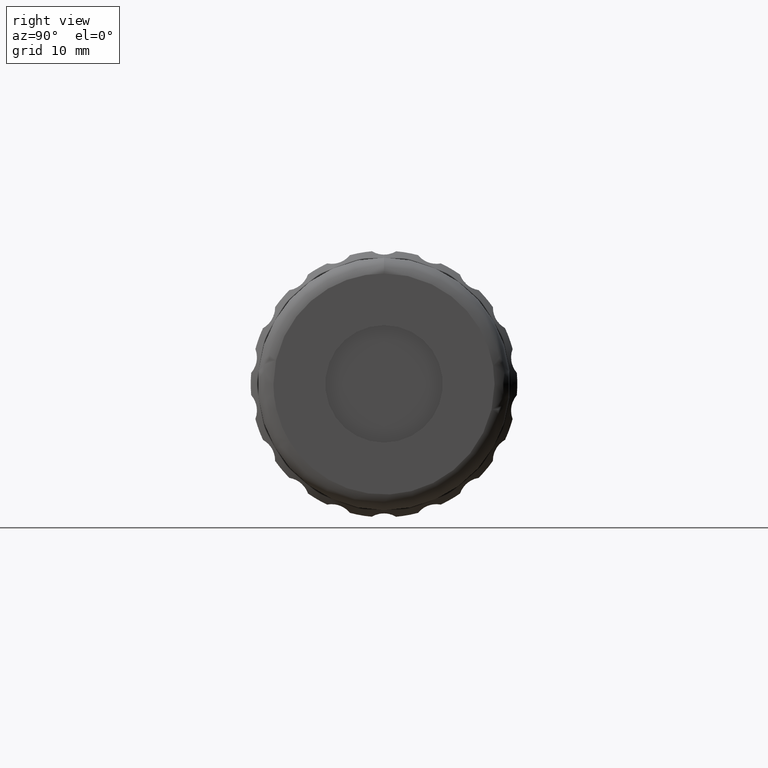
[diagram: clean part render]
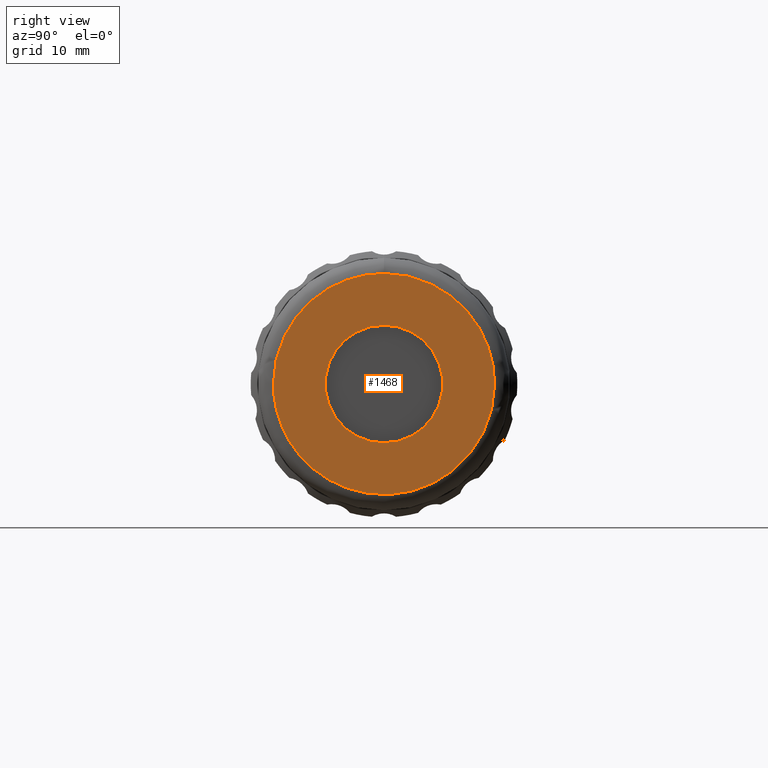
[diagram: same view with one face highlighted and labeled with its STEP entity id]
A machine part, right view. The second image highlights one B-rep face of the part: STEP entity #1468.
In plain terms, the highlighted planar face has unit normal (1, 0, 0).
Its self-contained STEP definition (entity closure, byte-faithful):
#80 = EDGE_CURVE ( 'NONE', #1389, #1389, #1071, .T. ) ;
#94 = CARTESIAN_POINT ( 'NONE',  ( 70.44685803487880094, 31.92096199999999584, -1.036051192078660836E-15 ) ) ;
#130 = ORIENTED_EDGE ( 'NONE', *, *, #80, .T. ) ;
#153 = AXIS2_PLACEMENT_3D ( 'NONE', #701, #859, #494 ) ;
#183 = ORIENTED_EDGE ( 'NONE', *, *, #1067, .F. ) ;
#221 = CARTESIAN_POINT ( 'NONE',  ( 70.44685803487880094, 31.92096199999999584, 8.259588770539357583 ) ) ;
#373 = CARTESIAN_POINT ( 'NONE',  ( 70.44685803487880094, 31.92096199999999584, -1.036051192078660836E-15 ) ) ;
#405 =( BOUNDED_CURVE ( )  B_SPLINE_CURVE ( 3, ( #451, #746, #2044, #1895 ),
 .UNSPECIFIED., .F., .T. ) 
 B_SPLINE_CURVE_WITH_KNOTS ( ( 4, 4 ),
 ( 0.000000000000000000, 1.000000000000000000 ),
 .UNSPECIFIED. ) 
 CURVE ( )  GEOMETRIC_REPRESENTATION_ITEM ( )  RATIONAL_B_SPLINE_CURVE ( ( 1.000000000000000000, 0.3333333333333333703, 0.3333333333333333703, 1.000000000000000000 ) ) 
 REPRESENTATION_ITEM ( '' )  );
#412 = CARTESIAN_POINT ( 'NONE',  ( 70.44685803487880094, 46.02096199999999726, 14.10000000000000142 ) ) ;
#451 = CARTESIAN_POINT ( 'NONE',  ( 70.44685803487880094, 60.12096199999999868, 0.000000000000000000 ) ) ;
#494 = DIRECTION ( 'NONE',  ( 0.000000000000000000, 0.000000000000000000, -1.000000000000000000 ) ) ;
#511 = EDGE_CURVE ( 'NONE', #2063, #1127, #835, .T. ) ;
#524 = EDGE_CURVE ( 'NONE', #1127, #917, #899, .T. ) ;
#648 = CARTESIAN_POINT ( 'NONE',  ( 70.44685803487880094, 46.02096199999999726, 14.44999999999999929 ) ) ;
#661 = DIRECTION ( 'NONE',  ( 1.000000000000000000, 0.000000000000000000, 0.000000000000000000 ) ) ;
#701 = CARTESIAN_POINT ( 'NONE',  ( 70.44685803487880094, 46.02096199999999726, 4.350675744370770171E-31 ) ) ;
#746 = CARTESIAN_POINT ( 'NONE',  ( 70.44685803487880094, 60.12096200000000579, -28.19999999999999929 ) ) ;
#759 = ORIENTED_EDGE ( 'NONE', *, *, #524, .F. ) ;
#761 = AXIS2_PLACEMENT_3D ( 'NONE', #648, #661, #984 ) ;
#786 = FACE_OUTER_BOUND ( 'NONE', #911, .T. ) ;
#817 = CARTESIAN_POINT ( 'NONE',  ( 70.44685803487880094, 46.02096199999999726, -7.500000000000000000 ) ) ;
#835 =( BOUNDED_CURVE ( )  B_SPLINE_CURVE ( 3, ( #373, #221, #1057, #1039 ),
 .UNSPECIFIED., .F., .T. ) 
 B_SPLINE_CURVE_WITH_KNOTS ( ( 4, 4 ),
 ( 0.000000000000000000, 1.000000000000000000 ),
 .UNSPECIFIED. ) 
 CURVE ( )  GEOMETRIC_REPRESENTATION_ITEM ( )  RATIONAL_B_SPLINE_CURVE ( ( 1.000000000000000000, 0.8047378541243649375, 0.8047378541243649375, 1.000000000000000000 ) ) 
 REPRESENTATION_ITEM ( '' )  );
#859 = DIRECTION ( 'NONE',  ( -1.000000000000000000, -0.000000000000000000, -0.000000000000000000 ) ) ;
#895 = CARTESIAN_POINT ( 'NONE',  ( 70.44685803487880094, 54.28055077053935662, 14.09999999999999964 ) ) ;
#899 =( BOUNDED_CURVE ( )  B_SPLINE_CURVE ( 3, ( #412, #895, #1066, #1717 ),
 .UNSPECIFIED., .F., .T. ) 
 B_SPLINE_CURVE_WITH_KNOTS ( ( 4, 4 ),
 ( 0.000000000000000000, 1.000000000000000000 ),
 .UNSPECIFIED. ) 
 CURVE ( )  GEOMETRIC_REPRESENTATION_ITEM ( )  RATIONAL_B_SPLINE_CURVE ( ( 1.000000000000000000, 0.8047378541243649375, 0.8047378541243649375, 1.000000000000000000 ) ) 
 REPRESENTATION_ITEM ( '' )  );
#911 = EDGE_LOOP ( 'NONE', ( #183, #759, #1299 ) ) ;
#917 = VERTEX_POINT ( 'NONE', #1217 ) ;
#984 = DIRECTION ( 'NONE',  ( 0.000000000000000000, 0.000000000000000000, -1.000000000000000000 ) ) ;
#1039 = CARTESIAN_POINT ( 'NONE',  ( 70.44685803487880094, 46.02096199999999726, 14.10000000000000142 ) ) ;
#1057 = CARTESIAN_POINT ( 'NONE',  ( 70.44685803487880094, 37.76137322946063790, 14.09999999999999964 ) ) ;
#1066 = CARTESIAN_POINT ( 'NONE',  ( 70.44685803487880094, 60.12096199999999868, 8.259588770539359359 ) ) ;
#1067 = EDGE_CURVE ( 'NONE', #917, #2063, #405, .T. ) ;
#1071 = CIRCLE ( 'NONE', #153, 7.500000000000000000 ) ;
#1127 = VERTEX_POINT ( 'NONE', #2109 ) ;
#1217 = CARTESIAN_POINT ( 'NONE',  ( 70.44685803487880094, 60.12096199999999868, 0.000000000000000000 ) ) ;
#1281 = FACE_BOUND ( 'NONE', #1498, .T. ) ;
#1299 = ORIENTED_EDGE ( 'NONE', *, *, #511, .F. ) ;
#1389 = VERTEX_POINT ( 'NONE', #817 ) ;
#1468 = ADVANCED_FACE ( 'NONE', ( #786, #1281 ), #1608, .T. ) ;
#1498 = EDGE_LOOP ( 'NONE', ( #130 ) ) ;
#1608 = PLANE ( 'NONE',  #761 ) ;
#1717 = CARTESIAN_POINT ( 'NONE',  ( 70.44685803487880094, 60.12096199999999868, 0.000000000000000000 ) ) ;
#1895 = CARTESIAN_POINT ( 'NONE',  ( 70.44685803487880094, 31.92096199999999584, -1.036051192078660836E-15 ) ) ;
#2044 = CARTESIAN_POINT ( 'NONE',  ( 70.44685803487880094, 31.92096199999999584, -28.19999999999999929 ) ) ;
#2063 = VERTEX_POINT ( 'NONE', #94 ) ;
#2109 = CARTESIAN_POINT ( 'NONE',  ( 70.44685803487880094, 46.02096199999999726, 14.10000000000000142 ) ) ;